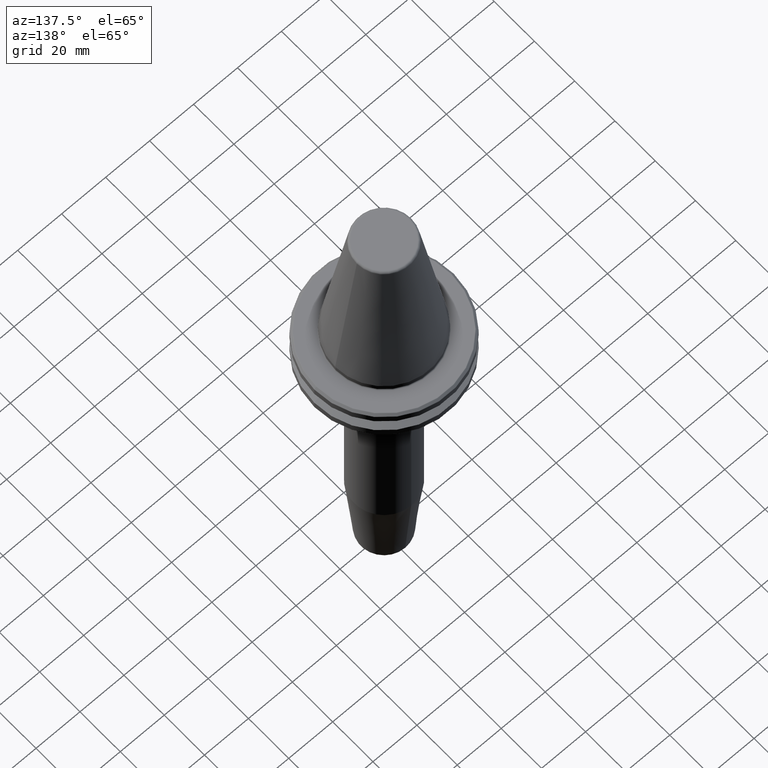
[diagram: clean part render]
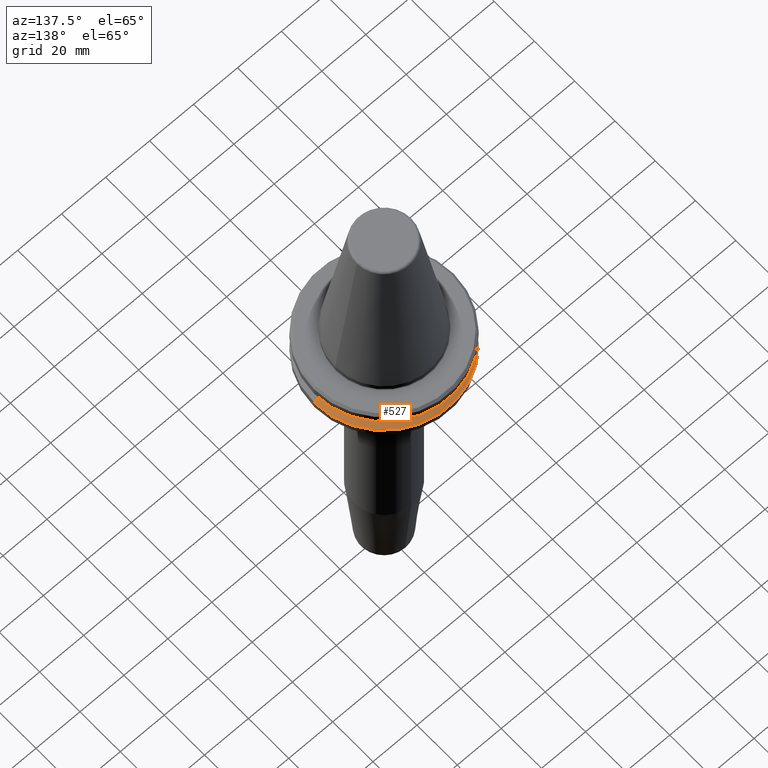
[diagram: same view with one face highlighted and labeled with its STEP entity id]
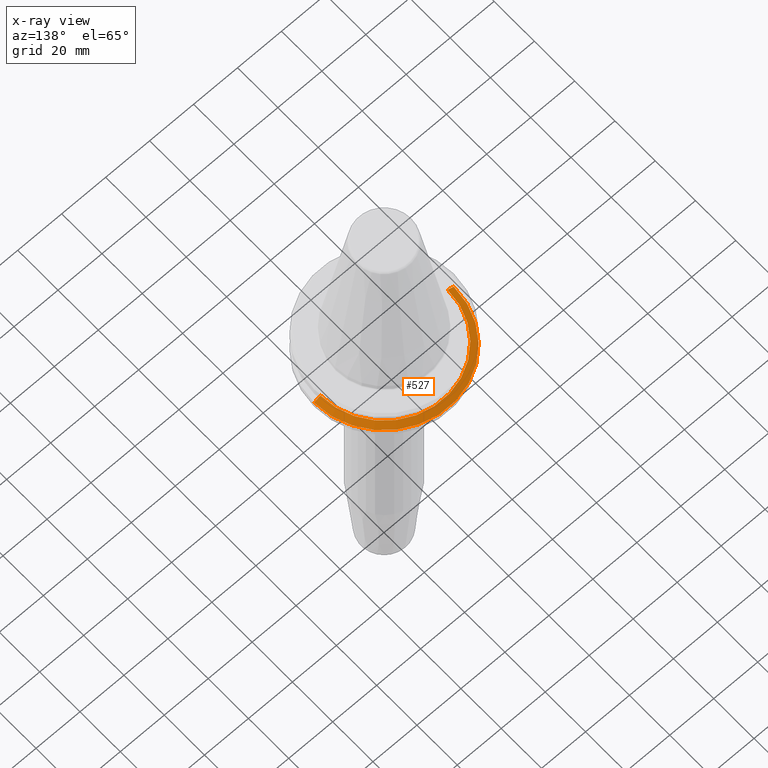
[diagram: x-ray of the same camera — body ghosted, the highlighted face saturated]
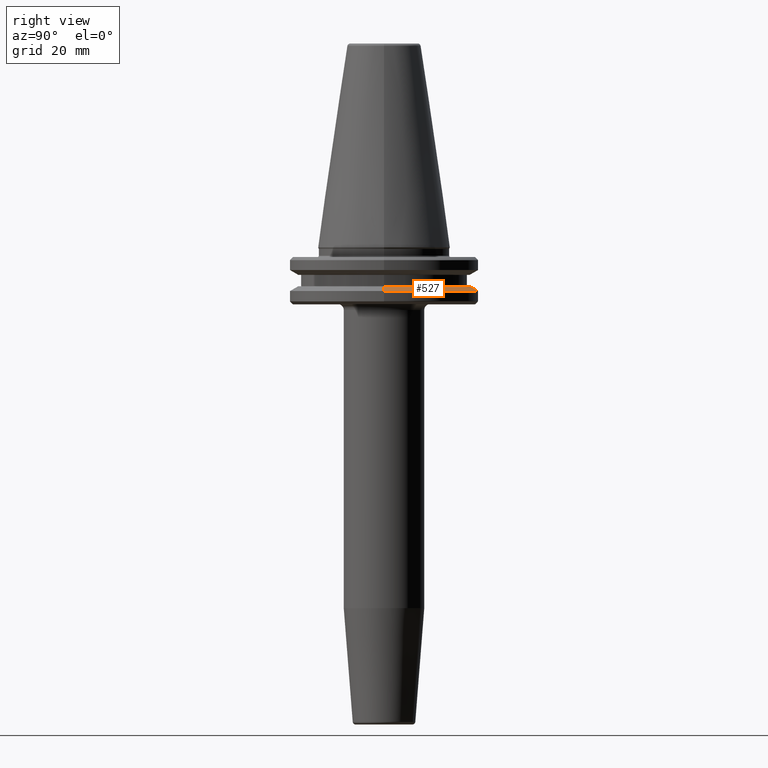
[diagram: same view with one face highlighted and labeled with its STEP entity id]
A machine part, auxiliary view. The second image highlights one B-rep face of the part: STEP entity #527.
The next image is the same camera in x-ray: the body ghosted, the highlighted face saturated — about 0% of this face is hidden behind the body in this view.
A second angle (right view) of the same face is appended — the face is thin or edge-on in the first view.
In plain terms, the highlighted conical surface has half-angle 60 deg.
Its self-contained STEP definition (entity closure, byte-faithful):
#14 = CARTESIAN_POINT ( 'NONE',  ( 0.0000000000000000000, 0.0000000000000000000, -13.00000000000001100 ) ) ;
#31 = DIRECTION ( 'NONE',  ( -1.000000000000000000, 0.0000000000000000000, 0.0000000000000000000 ) ) ;
#35 = AXIS2_PLACEMENT_3D ( 'NONE', #14, #884, #610 ) ;
#43 = ORIENTED_EDGE ( 'NONE', *, *, #46, .T. ) ;
#46 = EDGE_CURVE ( 'NONE', #947, #983, #963, .T. ) ;
#76 = EDGE_LOOP ( 'NONE', ( #949, #778, #43, #130 ) ) ;
#130 = ORIENTED_EDGE ( 'NONE', *, *, #618, .F. ) ;
#184 = CARTESIAN_POINT ( 'NONE',  ( 28.94089653438085100, 3.544237630528423800E-015, -13.00000000000001100 ) ) ;
#185 = AXIS2_PLACEMENT_3D ( 'NONE', #806, #1011, #331 ) ;
#231 = LINE ( 'NONE', #289, #706 ) ;
#267 = VECTOR ( 'NONE', #383, 999.9999999999998900 ) ;
#289 = CARTESIAN_POINT ( 'NONE',  ( -28.94089653438085100, 0.0000000000000000000, -13.00000000000001100 ) ) ;
#327 = EDGE_CURVE ( 'NONE', #465, #673, #405, .T. ) ;
#331 = DIRECTION ( 'NONE',  ( 1.000000000000000000, 0.0000000000000000000, 0.0000000000000000000 ) ) ;
#383 = DIRECTION ( 'NONE',  ( 0.8660254037844420400, 1.060575238724911000E-016, -0.4999999999999943900 ) ) ;
#405 = CIRCLE ( 'NONE', #35, 28.94089653438085100 ) ;
#409 = CARTESIAN_POINT ( 'NONE',  ( -28.94089653438085100, 0.0000000000000000000, -13.00000000000001100 ) ) ;
#465 = VERTEX_POINT ( 'NONE', #638 ) ;
#476 = DIRECTION ( 'NONE',  ( -0.8660254037844420400, 0.0000000000000000000, -0.4999999999999943900 ) ) ;
#496 = LINE ( 'NONE', #184, #267 ) ;
#527 = ADVANCED_FACE ( 'NONE', ( #583 ), #1034, .T. ) ;
#540 = CARTESIAN_POINT ( 'NONE',  ( -31.75000000000000000, 3.888253587292846500E-015, -14.62183664205671200 ) ) ;
#583 = FACE_OUTER_BOUND ( 'NONE', #76, .T. ) ;
#610 = DIRECTION ( 'NONE',  ( 1.000000000000000000, 0.0000000000000000000, 0.0000000000000000000 ) ) ;
#614 = EDGE_CURVE ( 'NONE', #465, #947, #496, .T. ) ;
#618 = EDGE_CURVE ( 'NONE', #673, #983, #231, .T. ) ;
#638 = CARTESIAN_POINT ( 'NONE',  ( 28.94089653438085100, 3.716245608910634800E-015, -13.00000000000001100 ) ) ;
#673 = VERTEX_POINT ( 'NONE', #409 ) ;
#706 = VECTOR ( 'NONE', #476, 999.9999999999998900 ) ;
#709 = DIRECTION ( 'NONE',  ( 0.0000000000000000000, 0.0000000000000000000, -1.000000000000000000 ) ) ;
#758 = AXIS2_PLACEMENT_3D ( 'NONE', #1091, #709, #31 ) ;
#778 = ORIENTED_EDGE ( 'NONE', *, *, #614, .T. ) ;
#806 = CARTESIAN_POINT ( 'NONE',  ( 0.0000000000000000000, 0.0000000000000000000, -14.62183664205671200 ) ) ;
#884 = DIRECTION ( 'NONE',  ( -0.0000000000000000000, -0.0000000000000000000, 1.000000000000000000 ) ) ;
#947 = VERTEX_POINT ( 'NONE', #1097 ) ;
#949 = ORIENTED_EDGE ( 'NONE', *, *, #327, .F. ) ;
#963 = CIRCLE ( 'NONE', #185, 31.75000000000000000 ) ;
#983 = VERTEX_POINT ( 'NONE', #540 ) ;
#1011 = DIRECTION ( 'NONE',  ( -0.0000000000000000000, -0.0000000000000000000, 1.000000000000000000 ) ) ;
#1034 = CONICAL_SURFACE ( 'NONE', #758, 28.94089653438085100, 1.047197551196604300 ) ;
#1091 = CARTESIAN_POINT ( 'NONE',  ( 0.0000000000000000000, 0.0000000000000000000, -13.00000000000001100 ) ) ;
#1097 = CARTESIAN_POINT ( 'NONE',  ( 31.75000000000000000, 0.0000000000000000000, -14.62183664205671200 ) ) ;